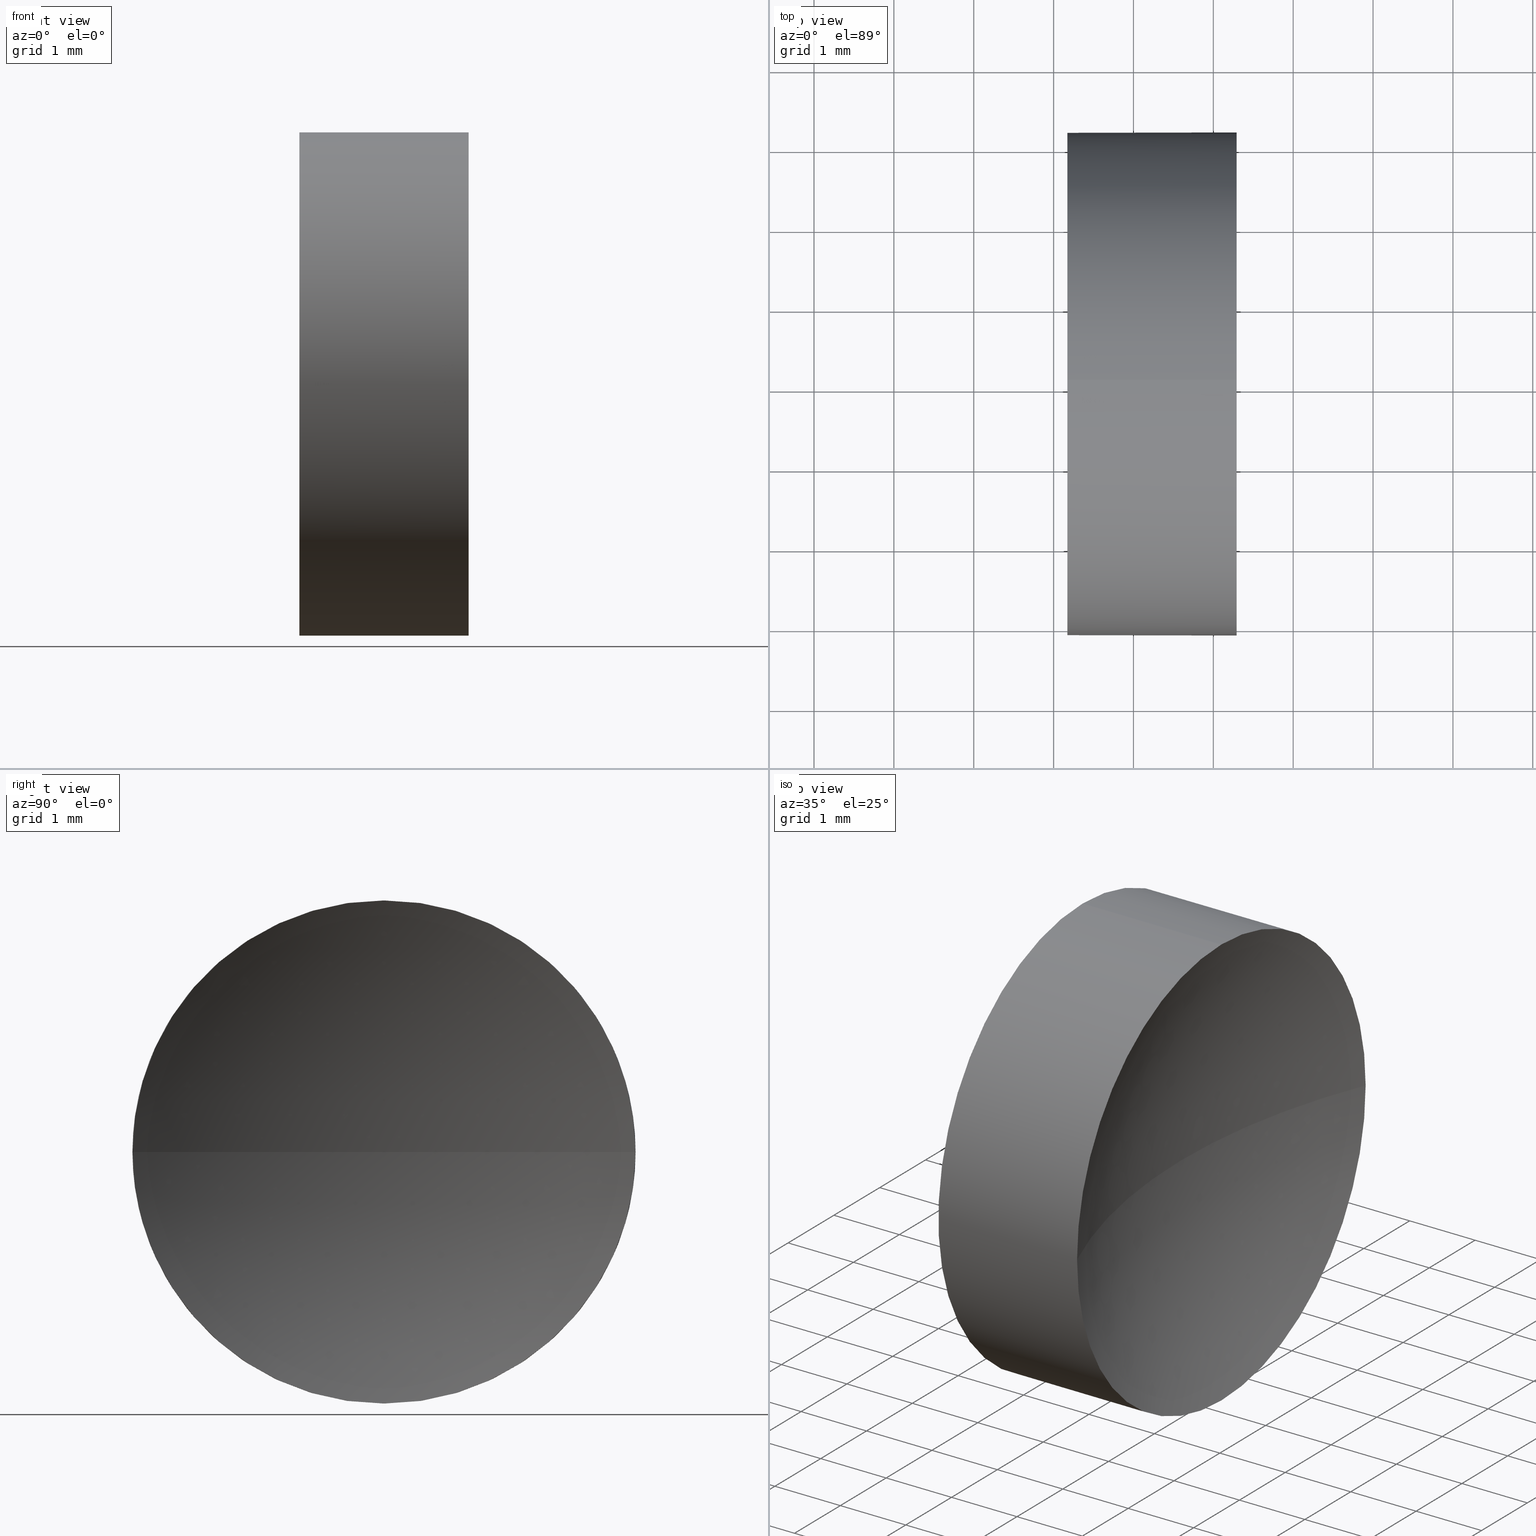
[diagram: canonical four-view strip — front | top / right | iso, engineering-drawing reading convention]
A machine part, canonical four-view strip (front | top / right | iso — engineering-drawing reading convention). The complete STEP part file that produces these views, byte-faithful:
ISO-10303-21;
HEADER;
FILE_DESCRIPTION (( 'STEP AP214' ),
    '1' );
FILE_NAME ('120006.STEP',
    '2019-06-14T02:55:16',
    ( '' ),
    ( '' ),
    'SwSTEP 2.0',
    'SolidWorks 2016',
    '' );
FILE_SCHEMA (( 'AUTOMOTIVE_DESIGN' ));
ENDSEC;

DATA;
#1 = VECTOR ( 'NONE', #32, 1000.000000000000000 ) ;
#2 = VERTEX_POINT ( 'NONE', #5 ) ;
#3 = PRODUCT_RELATED_PRODUCT_CATEGORY ( 'part', '', ( #59 ) ) ;
#4 = SURFACE_STYLE_USAGE ( .BOTH. , #45 ) ;
#5 = CARTESIAN_POINT ( 'NONE',  ( 23.67218982478000600, 13.04452057459747900, 0.0000000000000000000 ) ) ;
#6 =( LENGTH_UNIT ( ) NAMED_UNIT ( * ) SI_UNIT ( .MILLI., .METRE. ) );
#7 = DIRECTION ( 'NONE',  ( 0.0000000000000000000, -1.000000000000000000, -1.224646799147353200E-016 ) ) ;
#8 = FACE_OUTER_BOUND ( 'NONE', #66, .T. ) ;
#9 = STYLED_ITEM ( 'NONE', ( #79 ), #56 ) ;
#10 = SPHERICAL_SURFACE ( 'NONE', #28, 8.312020466063032100 ) ;
#11 = APPLICATION_CONTEXT ( 'automotive_design' ) ;
#12 =( NAMED_UNIT ( * ) SI_UNIT ( $, .STERADIAN. ) SOLID_ANGLE_UNIT ( ) );
#13 =( NAMED_UNIT ( * ) PLANE_ANGLE_UNIT ( ) SI_UNIT ( $, .RADIAN. ) );
#14 = EDGE_LOOP ( 'NONE', ( #41, #159, #86, #55 ) ) ;
#15 = AXIS2_PLACEMENT_3D ( 'NONE', #108, #139, #63 ) ;
#16 = AXIS2_PLACEMENT_3D ( 'NONE', #138, #168, #38 ) ;
#17 = ADVANCED_FACE ( 'NONE', ( #70 ), #132, .F. ) ;
#18 = VERTEX_POINT ( 'NONE', #71 ) ;
#19 = DIRECTION ( 'NONE',  ( 0.0000000000000000000, -1.000000000000000000, 0.0000000000000000000 ) ) ;
#20 = CIRCLE ( 'NONE', #145, 3.150000000000001700 ) ;
#21 = CARTESIAN_POINT ( 'NONE',  ( 22.17218947520228100, 13.04452057459747900, 3.150000000000001700 ) ) ;
#22 = FILL_AREA_STYLE ('',( #61 ) ) ;
#23 = DIRECTION ( 'NONE',  ( 0.0000000000000000000, 0.0000000000000000000, 1.000000000000000000 ) ) ;
#24 = AXIS2_PLACEMENT_3D ( 'NONE', #169, #106, #64 ) ;
#25 = ORIENTED_EDGE ( 'NONE', *, *, #175, .T. ) ;
#26 = AXIS2_PLACEMENT_3D ( 'NONE', #105, #102, #58 ) ;
#27 = EDGE_LOOP ( 'NONE', ( #99, #101 ) ) ;
#28 = AXIS2_PLACEMENT_3D ( 'NONE', #103, #85, #19 ) ;
#29 = DIRECTION ( 'NONE',  ( 0.0000000000000000000, 0.0000000000000000000, 1.000000000000000000 ) ) ;
#30 = ADVANCED_FACE ( 'NONE', ( #118 ), #10, .F. ) ;
#31 = CARTESIAN_POINT ( 'NONE',  ( 24.29218947520227800, 9.894520574597478900, 0.0000000000000000000 ) ) ;
#32 = DIRECTION ( 'NONE',  ( -1.000000000000000000, -0.0000000000000000000, -0.0000000000000000000 ) ) ;
#33 = COLOUR_RGB ( '',1.000000000000000000, 1.000000000000000000, 1.000000000000000000 ) ;
#34 = MECHANICAL_DESIGN_GEOMETRIC_PRESENTATION_REPRESENTATION (  '', ( #176 ), #43 ) ;
#35 = CIRCLE ( 'NONE', #167, 3.150000000000001700 ) ;
#36 = CARTESIAN_POINT ( 'NONE',  ( 24.29218947520227800, 13.04452057459747900, 3.150000000000001700 ) ) ;
#37 = VERTEX_POINT ( 'NONE', #88 ) ;
#38 = DIRECTION ( 'NONE',  ( 0.0000000000000000000, 0.0000000000000000000, 1.000000000000000000 ) ) ;
#39 = CARTESIAN_POINT ( 'NONE',  ( 24.29218947520227800, 13.04452057459747900, 0.0000000000000000000 ) ) ;
#40 = DIRECTION ( 'NONE',  ( -1.000000000000000000, -0.0000000000000000000, -0.0000000000000000000 ) ) ;
#41 = ORIENTED_EDGE ( 'NONE', *, *, #175, .F. ) ;
#42 = MECHANICAL_DESIGN_GEOMETRIC_PRESENTATION_REPRESENTATION (  '', ( #9 ), #110 ) ;
#43 =( GEOMETRIC_REPRESENTATION_CONTEXT ( 3 ) GLOBAL_UNCERTAINTY_ASSIGNED_CONTEXT ( ( #48 ) ) GLOBAL_UNIT_ASSIGNED_CONTEXT ( ( #117, #13, #153 ) ) REPRESENTATION_CONTEXT ( 'NONE', 'WORKASPACE' ) );
#44 = DIRECTION ( 'NONE',  ( -1.000000000000000000, -0.0000000000000000000, -0.0000000000000000000 ) ) ;
#45 = SURFACE_SIDE_STYLE ('',( #83 ) ) ;
#46 = CARTESIAN_POINT ( 'NONE',  ( 21.22493055706841100, 13.04452057459747900, 0.0000000000000000000 ) ) ;
#47 = CARTESIAN_POINT ( 'NONE',  ( 21.22493055706841100, 13.04452057459747900, -3.150000000000001700 ) ) ;
#48 = UNCERTAINTY_MEASURE_WITH_UNIT (LENGTH_MEASURE( 1.000000000000000100E-005 ), #117, 'distance_accuracy_value', 'NONE');
#49 = FACE_OUTER_BOUND ( 'NONE', #80, .T. ) ;
#50 = ORIENTED_EDGE ( 'NONE', *, *, #67, .T. ) ;
#51 = CARTESIAN_POINT ( 'NONE',  ( 0.0000000000000000000, 0.0000000000000000000, 0.0000000000000000000 ) ) ;
#52 =( GEOMETRIC_REPRESENTATION_CONTEXT ( 3 ) GLOBAL_UNCERTAINTY_ASSIGNED_CONTEXT ( ( #185 ) ) GLOBAL_UNIT_ASSIGNED_CONTEXT ( ( #76, #154, #12 ) ) REPRESENTATION_CONTEXT ( 'NONE', 'WORKASPACE' ) );
#53 = CLOSED_SHELL ( 'NONE', ( #162, #30, #87, #131, #17 ) ) ;
#54 = CIRCLE ( 'NONE', #94, 8.312020466063032100 ) ;
#55 = ORIENTED_EDGE ( 'NONE', *, *, #116, .F. ) ;
#56 = MANIFOLD_SOLID_BREP ( '��ת1', #53 ) ;
#57 = ORIENTED_EDGE ( 'NONE', *, *, #129, .T. ) ;
#58 = DIRECTION ( 'NONE',  ( 0.0000000000000000000, -1.000000000000000000, 0.0000000000000000000 ) ) ;
#59 = PRODUCT ( '120006', '120006', '', ( #73 ) ) ;
#60 = VERTEX_POINT ( 'NONE', #31 ) ;
#61 = FILL_AREA_STYLE_COLOUR ( '', #33 ) ;
#62 = ORIENTED_EDGE ( 'NONE', *, *, #67, .F. ) ;
#63 = DIRECTION ( 'NONE',  ( 0.0000000000000000000, 0.0000000000000000000, 1.000000000000000000 ) ) ;
#64 = DIRECTION ( 'NONE',  ( -1.000000000000000000, 0.0000000000000000000, 0.0000000000000000000 ) ) ;
#65 = COLOUR_RGB ( '',1.000000000000000000, 1.000000000000000000, 1.000000000000000000 ) ;
#66 = EDGE_LOOP ( 'NONE', ( #62, #171, #57, #97, #115 ) ) ;
#67 = EDGE_CURVE ( 'NONE', #37, #18, #156, .T. ) ;
#68 = CIRCLE ( 'NONE', #15, 3.150000000000001700 ) ;
#69 = AXIS2_PLACEMENT_3D ( 'NONE', #152, #172, #77 ) ;
#70 = FACE_OUTER_BOUND ( 'NONE', #27, .T. ) ;
#71 = CARTESIAN_POINT ( 'NONE',  ( 22.17218947520228100, 13.04452057459747900, -3.150000000000001700 ) ) ;
#72 = DIRECTION ( 'NONE',  ( -1.000000000000000000, -0.0000000000000000000, -0.0000000000000000000 ) ) ;
#73 = PRODUCT_CONTEXT ( 'NONE', #11, 'mechanical' ) ;
#74 = FACE_OUTER_BOUND ( 'NONE', #144, .T. ) ;
#75 = CARTESIAN_POINT ( 'NONE',  ( 24.29218947520227800, 13.04452057459747900, 0.0000000000000000000 ) ) ;
#76 =( LENGTH_UNIT ( ) NAMED_UNIT ( * ) SI_UNIT ( .MILLI., .METRE. ) );
#77 = DIRECTION ( 'NONE',  ( 0.0000000000000000000, 0.0000000000000000000, 1.000000000000000000 ) ) ;
#78 = UNCERTAINTY_MEASURE_WITH_UNIT (LENGTH_MEASURE( 1.000000000000000100E-005 ), #6, 'distance_accuracy_value', 'NONE');
#79 = PRESENTATION_STYLE_ASSIGNMENT (( #4 ) ) ;
#80 = EDGE_LOOP ( 'NONE', ( #111, #127, #186, #157 ) ) ;
#81 = PRESENTATION_LAYER_ASSIGNMENT (  '', '', ( #9 ) ) ;
#82 = EDGE_CURVE ( 'NONE', #84, #18, #125, .T. ) ;
#83 = SURFACE_STYLE_FILL_AREA ( #133 ) ;
#84 = VERTEX_POINT ( 'NONE', #21 ) ;
#85 = DIRECTION ( 'NONE',  ( 0.0000000000000000000, 0.0000000000000000000, 1.000000000000000000 ) ) ;
#86 = ORIENTED_EDGE ( 'NONE', *, *, #155, .F. ) ;
#87 = ADVANCED_FACE ( 'NONE', ( #49 ), #122, .F. ) ;
#88 = CARTESIAN_POINT ( 'NONE',  ( 24.29218947520227800, 13.04452057459747900, -3.150000000000001700 ) ) ;
#89 = EDGE_CURVE ( 'NONE', #18, #84, #20, .T. ) ;
#90 = CARTESIAN_POINT ( 'NONE',  ( 22.17218947520228100, 13.04452057459747900, 0.0000000000000000000 ) ) ;
#91 = CIRCLE ( 'NONE', #184, 3.150000000000001700 ) ;
#92 = APPLICATION_CONTEXT ( 'automotive_design' ) ;
#93 = DIRECTION ( 'NONE',  ( -1.000000000000000000, -0.0000000000000000000, -0.0000000000000000000 ) ) ;
#94 = AXIS2_PLACEMENT_3D ( 'NONE', #98, #180, #7 ) ;
#95 = APPLICATION_PROTOCOL_DEFINITION ( 'draft international standard', 'automotive_design', 1998, #92 ) ;
#96 = SURFACE_STYLE_USAGE ( .BOTH. , #137 ) ;
#97 = ORIENTED_EDGE ( 'NONE', *, *, #143, .T. ) ;
#98 = CARTESIAN_POINT ( 'NONE',  ( 31.98421029084303800, 13.04452057459747900, 0.0000000000000000000 ) ) ;
#99 = ORIENTED_EDGE ( 'NONE', *, *, #82, .T. ) ;
#100 = EDGE_CURVE ( 'NONE', #140, #124, #68, .T. ) ;
#101 = ORIENTED_EDGE ( 'NONE', *, *, #89, .T. ) ;
#102 = DIRECTION ( 'NONE',  ( 0.0000000000000000000, 0.0000000000000000000, 1.000000000000000000 ) ) ;
#103 = CARTESIAN_POINT ( 'NONE',  ( 31.98421029084303800, 13.04452057459747900, 0.0000000000000000000 ) ) ;
#104 = DIRECTION ( 'NONE',  ( 0.0000000000000000000, 0.0000000000000000000, 1.000000000000000000 ) ) ;
#105 = CARTESIAN_POINT ( 'NONE',  ( 31.98421029084303800, 13.04452057459747900, 0.0000000000000000000 ) ) ;
#106 = DIRECTION ( 'NONE',  ( 0.0000000000000000000, 0.0000000000000000000, -1.000000000000000000 ) ) ;
#107 = DIRECTION ( 'NONE',  ( 0.0000000000000000000, 0.0000000000000000000, 1.000000000000000000 ) ) ;
#108 = CARTESIAN_POINT ( 'NONE',  ( 24.29218947520227800, 13.04452057459747900, 0.0000000000000000000 ) ) ;
#109 = APPLICATION_PROTOCOL_DEFINITION ( 'draft international standard', 'automotive_design', 1998, #11 ) ;
#110 =( GEOMETRIC_REPRESENTATION_CONTEXT ( 3 ) GLOBAL_UNCERTAINTY_ASSIGNED_CONTEXT ( ( #78 ) ) GLOBAL_UNIT_ASSIGNED_CONTEXT ( ( #6, #146, #134 ) ) REPRESENTATION_CONTEXT ( 'NONE', 'WORKASPACE' ) );
#111 = ORIENTED_EDGE ( 'NONE', *, *, #179, .F. ) ;
#112 = PRODUCT_DEFINITION_SHAPE ( 'NONE', 'NONE',  #151 ) ;
#113 = SURFACE_STYLE_FILL_AREA ( #22 ) ;
#114 = CIRCLE ( 'NONE', #24, 8.312020466063032100 ) ;
#115 = ORIENTED_EDGE ( 'NONE', *, *, #89, .F. ) ;
#116 = EDGE_CURVE ( 'NONE', #37, #60, #158, .T. ) ;
#117 =( LENGTH_UNIT ( ) NAMED_UNIT ( * ) SI_UNIT ( .MILLI., .METRE. ) );
#118 = FACE_OUTER_BOUND ( 'NONE', #14, .T. ) ;
#119 = PRESENTATION_LAYER_ASSIGNMENT (  '', '', ( #176 ) ) ;
#120 = CARTESIAN_POINT ( 'NONE',  ( 24.29218947520227800, 16.19452057459747600, 3.857637417314163200E-016 ) ) ;
#121 = DIRECTION ( 'NONE',  ( -1.000000000000000000, -0.0000000000000000000, -0.0000000000000000000 ) ) ;
#122 = SPHERICAL_SURFACE ( 'NONE', #26, 8.312020466063032100 ) ;
#123 = SHAPE_DEFINITION_REPRESENTATION ( #112, #136 ) ;
#124 = VERTEX_POINT ( 'NONE', #120 ) ;
#125 = CIRCLE ( 'NONE', #142, 3.150000000000001700 ) ;
#126 = AXIS2_PLACEMENT_3D ( 'NONE', #46, #178, #150 ) ;
#127 = ORIENTED_EDGE ( 'NONE', *, *, #100, .F. ) ;
#128 = CARTESIAN_POINT ( 'NONE',  ( 22.17218947520228100, 13.04452057459747900, 0.0000000000000000000 ) ) ;
#129 = EDGE_CURVE ( 'NONE', #60, #140, #91, .T. ) ;
#130 = CARTESIAN_POINT ( 'NONE',  ( 22.17218947520228100, 13.04452057459747900, 0.0000000000000000000 ) ) ;
#131 = ADVANCED_FACE ( 'NONE', ( #8 ), #166, .T. ) ;
#132 = PLANE ( 'NONE',  #135 ) ;
#133 = FILL_AREA_STYLE ('',( #163 ) ) ;
#134 =( NAMED_UNIT ( * ) SI_UNIT ( $, .STERADIAN. ) SOLID_ANGLE_UNIT ( ) );
#135 = AXIS2_PLACEMENT_3D ( 'NONE', #130, #164, #161 ) ;
#136 = ADVANCED_BREP_SHAPE_REPRESENTATION ( '120006', ( #56, #160 ), #52 ) ;
#137 = SURFACE_SIDE_STYLE ('',( #113 ) ) ;
#138 = CARTESIAN_POINT ( 'NONE',  ( 21.22493055706841100, 13.04452057459747900, 0.0000000000000000000 ) ) ;
#139 = DIRECTION ( 'NONE',  ( -1.000000000000000000, -0.0000000000000000000, -0.0000000000000000000 ) ) ;
#140 = VERTEX_POINT ( 'NONE', #36 ) ;
#141 = VECTOR ( 'NONE', #40, 1000.000000000000000 ) ;
#142 = AXIS2_PLACEMENT_3D ( 'NONE', #90, #72, #104 ) ;
#143 = EDGE_CURVE ( 'NONE', #140, #84, #183, .T. ) ;
#144 = EDGE_LOOP ( 'NONE', ( #25, #50, #149, #174, #177 ) ) ;
#145 = AXIS2_PLACEMENT_3D ( 'NONE', #128, #44, #29 ) ;
#146 =( NAMED_UNIT ( * ) PLANE_ANGLE_UNIT ( ) SI_UNIT ( $, .RADIAN. ) );
#147 = DIRECTION ( 'NONE',  ( 0.0000000000000000000, 0.0000000000000000000, 1.000000000000000000 ) ) ;
#148 = CYLINDRICAL_SURFACE ( 'NONE', #16, 3.150000000000001700 ) ;
#149 = ORIENTED_EDGE ( 'NONE', *, *, #82, .F. ) ;
#150 = DIRECTION ( 'NONE',  ( 0.0000000000000000000, 0.0000000000000000000, 1.000000000000000000 ) ) ;
#151 = PRODUCT_DEFINITION ( 'δ֪', '', #173, #165 ) ;
#152 = CARTESIAN_POINT ( 'NONE',  ( 24.29218947520227800, 13.04452057459747900, 0.0000000000000000000 ) ) ;
#153 =( NAMED_UNIT ( * ) SI_UNIT ( $, .STERADIAN. ) SOLID_ANGLE_UNIT ( ) );
#154 =( NAMED_UNIT ( * ) PLANE_ANGLE_UNIT ( ) SI_UNIT ( $, .RADIAN. ) );
#155 = EDGE_CURVE ( 'NONE', #60, #2, #114, .T. ) ;
#156 = LINE ( 'NONE', #47, #1 ) ;
#157 = ORIENTED_EDGE ( 'NONE', *, *, #155, .T. ) ;
#158 = CIRCLE ( 'NONE', #69, 3.150000000000001700 ) ;
#159 = ORIENTED_EDGE ( 'NONE', *, *, #179, .T. ) ;
#160 = AXIS2_PLACEMENT_3D ( 'NONE', #51, #147, #182 ) ;
#161 = DIRECTION ( 'NONE',  ( 0.0000000000000000000, 0.0000000000000000000, -1.000000000000000000 ) ) ;
#162 = ADVANCED_FACE ( 'NONE', ( #74 ), #148, .T. ) ;
#163 = FILL_AREA_STYLE_COLOUR ( '', #65 ) ;
#164 = DIRECTION ( 'NONE',  ( 1.000000000000000000, 0.0000000000000000000, 0.0000000000000000000 ) ) ;
#165 = PRODUCT_DEFINITION_CONTEXT ( 'detailed design', #92, 'design' ) ;
#166 = CYLINDRICAL_SURFACE ( 'NONE', #126, 3.150000000000001700 ) ;
#167 = AXIS2_PLACEMENT_3D ( 'NONE', #39, #93, #23 ) ;
#168 = DIRECTION ( 'NONE',  ( -1.000000000000000000, -0.0000000000000000000, -0.0000000000000000000 ) ) ;
#169 = CARTESIAN_POINT ( 'NONE',  ( 31.98421029084303800, 13.04452057459747900, 0.0000000000000000000 ) ) ;
#170 = CARTESIAN_POINT ( 'NONE',  ( 21.22493055706841100, 13.04452057459747900, 3.150000000000001700 ) ) ;
#171 = ORIENTED_EDGE ( 'NONE', *, *, #116, .T. ) ;
#172 = DIRECTION ( 'NONE',  ( -1.000000000000000000, -0.0000000000000000000, -0.0000000000000000000 ) ) ;
#173 = PRODUCT_DEFINITION_FORMATION_WITH_SPECIFIED_SOURCE ( '�κ�', '', #59, .NOT_KNOWN. ) ;
#174 = ORIENTED_EDGE ( 'NONE', *, *, #143, .F. ) ;
#175 = EDGE_CURVE ( 'NONE', #124, #37, #35, .T. ) ;
#176 = STYLED_ITEM ( 'NONE', ( #181 ), #136 ) ;
#177 = ORIENTED_EDGE ( 'NONE', *, *, #100, .T. ) ;
#178 = DIRECTION ( 'NONE',  ( -1.000000000000000000, -0.0000000000000000000, -0.0000000000000000000 ) ) ;
#179 = EDGE_CURVE ( 'NONE', #124, #2, #54, .T. ) ;
#180 = DIRECTION ( 'NONE',  ( 0.0000000000000000000, -1.224646799147353200E-016, 1.000000000000000000 ) ) ;
#181 = PRESENTATION_STYLE_ASSIGNMENT (( #96 ) ) ;
#182 = DIRECTION ( 'NONE',  ( 1.000000000000000000, 0.0000000000000000000, 0.0000000000000000000 ) ) ;
#183 = LINE ( 'NONE', #170, #141 ) ;
#184 = AXIS2_PLACEMENT_3D ( 'NONE', #75, #121, #107 ) ;
#185 = UNCERTAINTY_MEASURE_WITH_UNIT (LENGTH_MEASURE( 1.000000000000000100E-005 ), #76, 'distance_accuracy_value', 'NONE');
#186 = ORIENTED_EDGE ( 'NONE', *, *, #129, .F. ) ;
ENDSEC;
END-ISO-10303-21;
